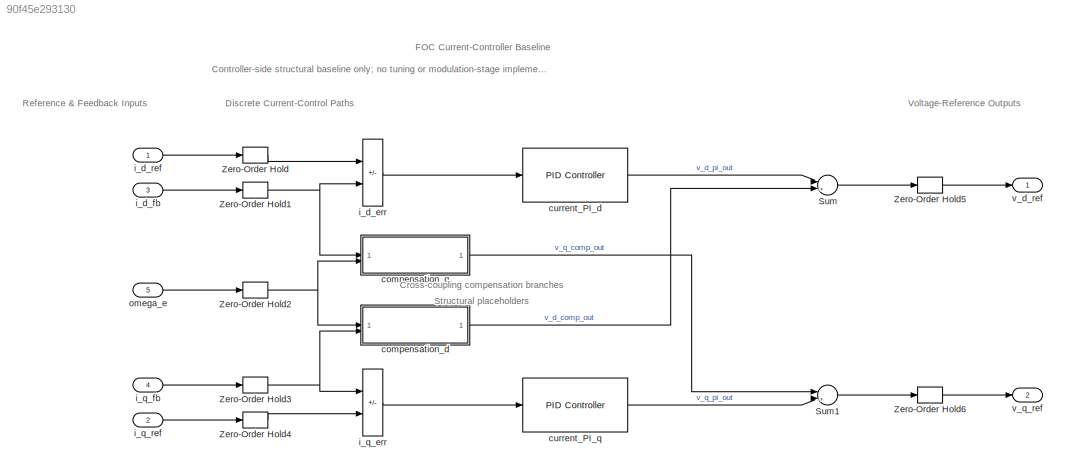
MODEL slx_90f45e293130
KIND model
CONFIG AbsTol = auto
CONFIG EnableMultiTasking = off
CONFIG FixedStep = Ts_ctrl
CONFIG MaxStep = auto
CONFIG MinStep = auto
CONFIG RelTol = 1e-3
CONFIG SampleTimeConstraint = Unconstrained
CONFIG SolverName = FixedStepDiscrete
CONFIG StartTime = 0.0
CONFIG StopTime = 0.01
WORKSPACE source: MATLAB code (in-file)
WORKSPACE fs_ctrl = 5000.0  (= 5000)
WORKSPACE Ts_ctrl = 1/fs_ctrl  (= 0.0002)
WORKSPACE Kp_id = 5
WORKSPACE Ki_id = 100
WORKSPACE Kp_iq = 5
WORKSPACE Ki_iq = 100
WORKSPACE Ld_comp = 2e-3  (= 0.002)
WORKSPACE Lq_comp = 2e-3  (= 0.002)
WORKSPACE psi_f_comp = 0.1
WORKSPACE comp_d_sign = -1
WORKSPACE comp_q_sign = 1
BLOCK [Sum] Sum
  Inputs = |++|
BLOCK [Sum] Sum1
  Inputs = |++|
BLOCK [ZeroOrderHold] Zero-Order Hold
  SampleTime = Ts_ctrl
BLOCK [ZeroOrderHold] Zero-Order Hold1
  SampleTime = Ts_ctrl
BLOCK [ZeroOrderHold] Zero-Order Hold2
  SampleTime = Ts_ctrl
BLOCK [ZeroOrderHold] Zero-Order Hold3
  SampleTime = Ts_ctrl
BLOCK [ZeroOrderHold] Zero-Order Hold4
  SampleTime = Ts_ctrl
BLOCK [ZeroOrderHold] Zero-Order Hold5
  SampleTime = Ts_ctrl
BLOCK [ZeroOrderHold] Zero-Order Hold6
  SampleTime = Ts_ctrl
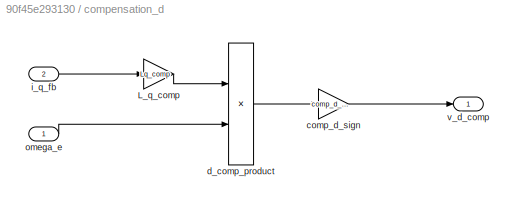
BLOCK [SubSystem] compensation_d
BLOCK [Gain] compensation_d/L_q_comp
  Gain = Lq_comp
BLOCK [Gain] compensation_d/comp_d_sign
  Gain = comp_d_sign
BLOCK [Product] compensation_d/d_comp_product
BLOCK [Inport] compensation_d/i_q_fb
  Port = 2
BLOCK [Inport] compensation_d/omega_e
BLOCK [Outport] compensation_d/v_d_comp
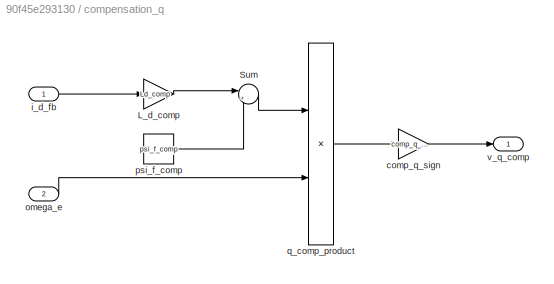
BLOCK [SubSystem] compensation_q
BLOCK [Gain] compensation_q/L_d_comp
  Gain = Ld_comp
BLOCK [Sum] compensation_q/Sum
  Inputs = |++
BLOCK [Gain] compensation_q/comp_q_sign
  Gain = comp_q_sign
BLOCK [Inport] compensation_q/i_d_fb
BLOCK [Inport] compensation_q/omega_e
  Port = 2
BLOCK [Constant] compensation_q/psi_f_comp
  Value = psi_f_comp
BLOCK [Product] compensation_q/q_comp_product
BLOCK [Outport] compensation_q/v_q_comp
BLOCK [Reference] current_PI_d  REF=slpidlib/PID Controller
  LibrarySourceBlock = simulink/Discrete/Discrete PID Controller
  SourceBlock = slpidlib/PID Controller
  SourceType = PID 1dof
BLOCK [Reference] current_PI_q  REF=slpidlib/PID Controller
  LibrarySourceBlock = simulink/Discrete/Discrete PID Controller
  SourceBlock = slpidlib/PID Controller
  SourceType = PID 1dof
BLOCK [Sum] i_d_err
  IconShape = rectangular
  Inputs = +-
BLOCK [Inport] i_d_fb
  Port = 3
BLOCK [Inport] i_d_ref
BLOCK [Sum] i_q_err
  IconShape = rectangular
  Inputs = -+
BLOCK [Inport] i_q_fb
  Port = 4
BLOCK [Inport] i_q_ref
  Port = 2
BLOCK [Inport] omega_e
  Port = 5
BLOCK [Outport] v_d_ref
BLOCK [Outport] v_q_ref
  Port = 2
ANNOTATION (root): FOC Current-Controller Baseline
ANNOTATION (root): Controller-side structural baseline only; no tuning or modulation-stage implementation Controller-rate input sampling and output hold form part of the present baseline
ANNOTATION (root): Cross-coupling compensation branches
ANNOTATION (root): Structural placeholders
ANNOTATION (root): Discrete Current-Control Paths
ANNOTATION (root): Reference & Feedback Inputs
ANNOTATION (root): Voltage-Reference Outputs
LINE Sum1:1 -> Zero-Order Hold6:1
LINE Sum:1 -> Zero-Order Hold5:1
NET Zero-Order Hold1:1 -> compensation_q:1, i_d_err:2
NET Zero-Order Hold2:1 -> compensation_d:1, compensation_q:2
NET Zero-Order Hold3:1 -> compensation_d:2, i_q_err:1
LINE Zero-Order Hold4:1 -> i_q_err:2
LINE Zero-Order Hold5:1 -> v_d_ref:1
LINE Zero-Order Hold6:1 -> v_q_ref:1
LINE Zero-Order Hold:1 -> i_d_err:1
LINE compensation_d/L_q_comp:1 -> compensation_d/d_comp_product:1
LINE compensation_d/comp_d_sign:1 -> compensation_d/v_d_comp:1
LINE compensation_d/d_comp_product:1 -> compensation_d/comp_d_sign:1
LINE compensation_d/i_q_fb:1 -> compensation_d/L_q_comp:1
LINE compensation_d/omega_e:1 -> compensation_d/d_comp_product:2
LINE compensation_d:1 -> Sum:2
LINE compensation_q/L_d_comp:1 -> compensation_q/Sum:1
LINE compensation_q/Sum:1 -> compensation_q/q_comp_product:1
LINE compensation_q/comp_q_sign:1 -> compensation_q/v_q_comp:1
LINE compensation_q/i_d_fb:1 -> compensation_q/L_d_comp:1
LINE compensation_q/omega_e:1 -> compensation_q/q_comp_product:2
LINE compensation_q/psi_f_comp:1 -> compensation_q/Sum:2
LINE compensation_q/q_comp_product:1 -> compensation_q/comp_q_sign:1
LINE compensation_q:1 -> Sum1:1
LINE current_PI_d:1 -> Sum:1
LINE current_PI_q:1 -> Sum1:2
LINE i_d_err:1 -> current_PI_d:1
LINE i_d_fb:1 -> Zero-Order Hold1:1
LINE i_d_ref:1 -> Zero-Order Hold:1
LINE i_q_err:1 -> current_PI_q:1
LINE i_q_fb:1 -> Zero-Order Hold3:1
LINE i_q_ref:1 -> Zero-Order Hold4:1
LINE omega_e:1 -> Zero-Order Hold2:1
note: NET lines group one-source signal fan-out (src -> all destinations, sorted); 1:1 wires keep LINE
